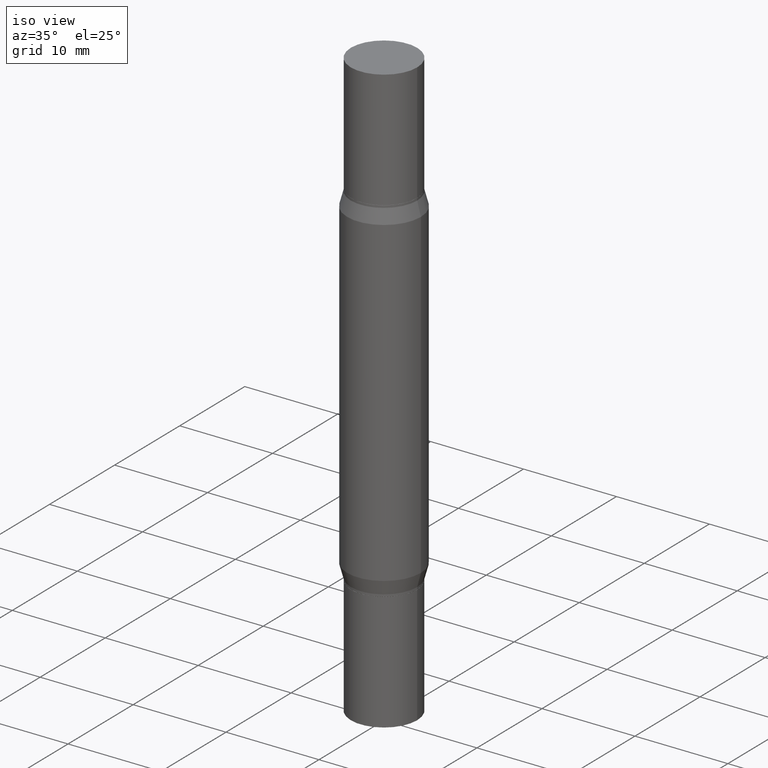
[diagram: clean part render]
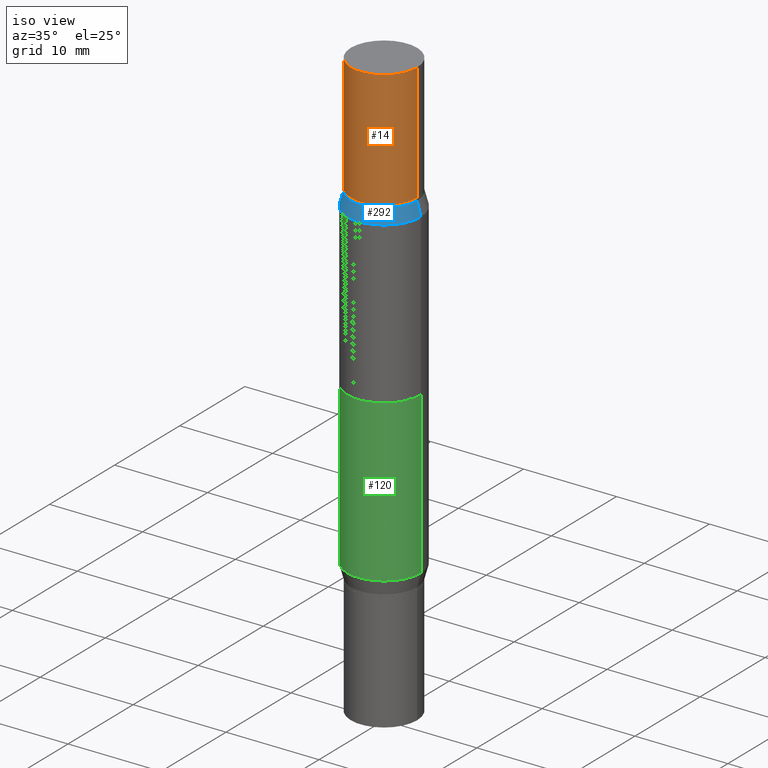
[diagram: same view with three faces highlighted in distinct colors, each labeled with its STEP entity id]
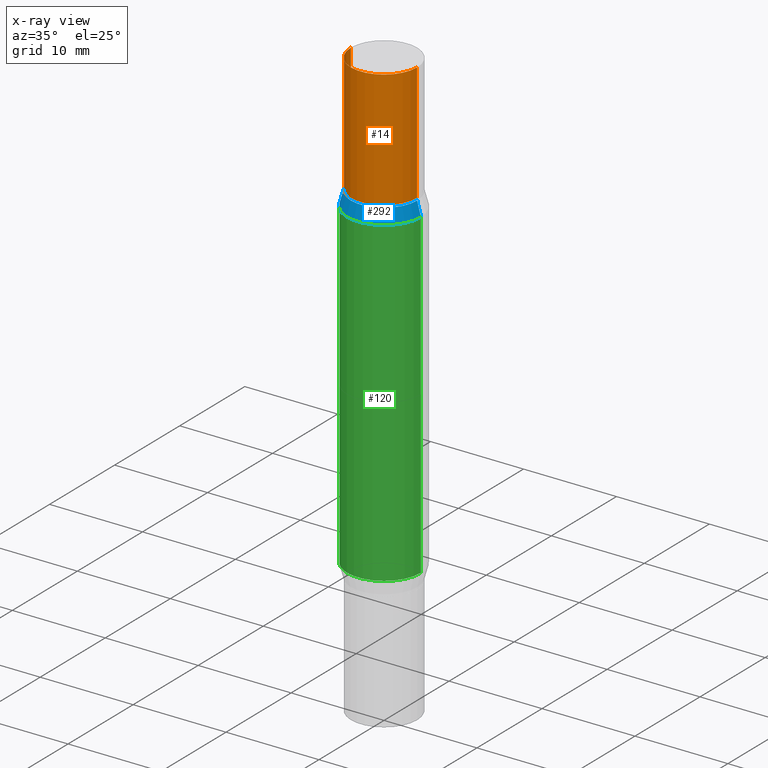
[diagram: x-ray of the same camera — body ghosted, the three highlighted faces saturated]
A machine part, iso view with three faces highlighted in distinct colors.
The next image is the same camera in x-ray (body ghosted, the three faces saturated) — at least one of them is partly hidden behind the body in this view.
Their STEP definitions:

[orange] entity #14 — the highlighted cylindrical surface (partial cylindrical patch) has radius 3.5712 mm, axis along (-0, -0, -1).
#14 = ADVANCED_FACE ( 'NONE', ( #321 ), #200, .T. ) ;
#29 = ORIENTED_EDGE ( 'NONE', *, *, #704, .T. ) ;
#49 = CARTESIAN_POINT ( 'NONE',  ( -0.1406000000000000028, 9.203943989387182081E-17, 5.463695987328557991E-16 ) ) ;
#100 = CARTESIAN_POINT ( 'NONE',  ( 4.890937612370273754E-29, -1.745497852333085568E-15, -0.4999999999999993339 ) ) ;
#115 = CIRCLE ( 'NONE', #154, 0.1406000000000000028 ) ;
#132 = EDGE_CURVE ( 'NONE', #849, #193, #115, .T. ) ;
#154 = AXIS2_PLACEMENT_3D ( 'NONE', #974, #598, #366 ) ;
#184 = CARTESIAN_POINT ( 'NONE',  ( 0.1406000000000000028, -9.710912594738023419E-15, -2.499999999999999556 ) ) ;
#188 = DIRECTION ( 'NONE',  ( 1.000000000000000000, -6.982962677686265133E-15, 0.000000000000000000 ) ) ;
#193 = VERTEX_POINT ( 'NONE', #387 ) ;
#200 = CYLINDRICAL_SURFACE ( 'NONE', #318, 0.1406000000000000028 ) ;
#243 = DIRECTION ( 'NONE',  ( -2.445468806185136597E-29, -3.491805094961124077E-15, -1.000000000000000000 ) ) ;
#265 = EDGE_LOOP ( 'NONE', ( #642, #613, #29, #328 ) ) ;
#287 = CIRCLE ( 'NONE', #544, 0.1406000000000000028 ) ;
#318 = AXIS2_PLACEMENT_3D ( 'NONE', #785, #243, #188 ) ;
#321 = FACE_OUTER_BOUND ( 'NONE', #265, .T. ) ;
#328 = ORIENTED_EDGE ( 'NONE', *, *, #773, .F. ) ;
#335 = DIRECTION ( 'NONE',  ( -2.445468806185136877E-29, -3.491805094961123683E-15, -1.000000000000000000 ) ) ;
#340 = DIRECTION ( 'NONE',  ( 1.000000000000000000, -6.982962677686265133E-15, 0.000000000000000000 ) ) ;
#366 = DIRECTION ( 'NONE',  ( 1.000000000000000000, -6.982962677686266711E-15, 0.000000000000000000 ) ) ;
#387 = CARTESIAN_POINT ( 'NONE',  ( 0.1406000000000000028, -9.813998573352146072E-16, 5.463695987328526437E-16 ) ) ;
#402 = DIRECTION ( 'NONE',  ( -2.445468806185136877E-29, -3.491805094961123683E-15, -1.000000000000000000 ) ) ;
#514 = CARTESIAN_POINT ( 'NONE',  ( 0.1406000000000000028, -2.727302404815774476E-15, -0.4999999999999993339 ) ) ;
#544 = AXIS2_PLACEMENT_3D ( 'NONE', #100, #549, #340 ) ;
#549 = DIRECTION ( 'NONE',  ( 2.445468806185136597E-29, 3.491805094961124077E-15, 1.000000000000000000 ) ) ;
#567 = CARTESIAN_POINT ( 'NONE',  ( -0.1406000000000000028, -7.764522023768658166E-15, -2.499999999999999556 ) ) ;
#589 = CARTESIAN_POINT ( 'NONE',  ( -0.1406000000000000028, 9.203943989387194407E-17, -0.4999999999999993339 ) ) ;
#598 = DIRECTION ( 'NONE',  ( 2.445468806185136597E-29, 3.491805094961124077E-15, 1.000000000000000000 ) ) ;
#613 = ORIENTED_EDGE ( 'NONE', *, *, #802, .T. ) ;
#634 = VECTOR ( 'NONE', #335, 39.37007874015748143 ) ;
#642 = ORIENTED_EDGE ( 'NONE', *, *, #132, .F. ) ;
#704 = EDGE_CURVE ( 'NONE', #940, #842, #287, .T. ) ;
#773 = EDGE_CURVE ( 'NONE', #193, #842, #939, .T. ) ;
#785 = CARTESIAN_POINT ( 'NONE',  ( 0.000000000000000000, -8.729108042255335103E-15, -2.499999999999999556 ) ) ;
#802 = EDGE_CURVE ( 'NONE', #849, #940, #850, .T. ) ;
#810 = VECTOR ( 'NONE', #402, 39.37007874015748143 ) ;
#842 = VERTEX_POINT ( 'NONE', #514 ) ;
#849 = VERTEX_POINT ( 'NONE', #49 ) ;
#850 = LINE ( 'NONE', #567, #810 ) ;
#939 = LINE ( 'NONE', #184, #634 ) ;
#940 = VERTEX_POINT ( 'NONE', #589 ) ;
#974 = CARTESIAN_POINT ( 'NONE',  ( 6.113672015462842613E-29, 4.046951474745467748E-19, 5.463695987328526437E-16 ) ) ;

[blue] entity #292 — the highlighted conical surface has half-angle 15 deg.
#93 = ORIENTED_EDGE ( 'NONE', *, *, #395, .T. ) ;
#94 = CARTESIAN_POINT ( 'NONE',  ( 4.866482924308422209E-29, -1.780415903282698911E-15, -0.5099999999999994538 ) ) ;
#96 = LINE ( 'NONE', #260, #809 ) ;
#167 = CONICAL_SURFACE ( 'NONE', #212, 0.1405999999999998917, 0.2617993877991502960 ) ;
#189 = DIRECTION ( 'NONE',  ( -0.2588190451025215721, -1.597197180879712551E-15, -0.9659258262890679791 ) ) ;
#191 = DIRECTION ( 'NONE',  ( 1.000000000000000000, -6.982962677686265133E-15, 0.000000000000000000 ) ) ;
#196 = CIRCLE ( 'NONE', #453, 0.1562500000000000000 ) ;
#203 = CARTESIAN_POINT ( 'NONE',  ( -0.1405999999999998917, -7.992438105949555922E-16, -0.5099999999999994538 ) ) ;
#212 = AXIS2_PLACEMENT_3D ( 'NONE', #94, #394, #694 ) ;
#258 = CARTESIAN_POINT ( 'NONE',  ( 4.723651417821850369E-29, -1.984360349766479521E-15, -0.5684065951384525972 ) ) ;
#260 = CARTESIAN_POINT ( 'NONE',  ( -0.1405999999999998917, -8.158298847960224676E-16, -0.5099999999999994538 ) ) ;
#263 = VERTEX_POINT ( 'NONE', #478 ) ;
#267 = CARTESIAN_POINT ( 'NONE',  ( 0.1405999999999998917, -2.762220455765387228E-15, -0.5099999999999994538 ) ) ;
#292 = ADVANCED_FACE ( 'NONE', ( #772 ), #167, .T. ) ;
#393 = VERTEX_POINT ( 'NONE', #203 ) ;
#394 = DIRECTION ( 'NONE',  ( -2.445468806185136597E-29, -3.491805094961124077E-15, -1.000000000000000000 ) ) ;
#395 = EDGE_CURVE ( 'NONE', #678, #263, #196, .T. ) ;
#407 = LINE ( 'NONE', #267, #918 ) ;
#416 = AXIS2_PLACEMENT_3D ( 'NONE', #656, #430, #795 ) ;
#430 = DIRECTION ( 'NONE',  ( 2.445468806185136597E-29, 3.491805094961124077E-15, 1.000000000000000000 ) ) ;
#435 = EDGE_CURVE ( 'NONE', #695, #263, #407, .T. ) ;
#453 = AXIS2_PLACEMENT_3D ( 'NONE', #258, #718, #191 ) ;
#468 = ORIENTED_EDGE ( 'NONE', *, *, #435, .F. ) ;
#478 = CARTESIAN_POINT ( 'NONE',  ( 0.1562500000000000000, -3.075448268154960667E-15, -0.5684065951384525972 ) ) ;
#575 = CIRCLE ( 'NONE', #416, 0.1405999999999998917 ) ;
#656 = CARTESIAN_POINT ( 'NONE',  ( 4.866482924308422209E-29, -1.780415903282698911E-15, -0.5099999999999994538 ) ) ;
#678 = VERTEX_POINT ( 'NONE', #865 ) ;
#694 = DIRECTION ( 'NONE',  ( 1.000000000000000000, -6.982962677686266711E-15, 0.000000000000000000 ) ) ;
#695 = VERTEX_POINT ( 'NONE', #709 ) ;
#709 = CARTESIAN_POINT ( 'NONE',  ( 0.1405999999999998917, -2.762220455765387228E-15, -0.5099999999999994538 ) ) ;
#714 = EDGE_CURVE ( 'NONE', #393, #678, #96, .T. ) ;
#718 = DIRECTION ( 'NONE',  ( 2.445468806185136597E-29, 3.491805094961124077E-15, 1.000000000000000000 ) ) ;
#723 = DIRECTION ( 'NONE',  ( 0.2588190451025215721, -5.180148453816008779E-15, -0.9659258262890679791 ) ) ;
#772 = FACE_OUTER_BOUND ( 'NONE', #823, .T. ) ;
#795 = DIRECTION ( 'NONE',  ( 1.000000000000000000, -6.982962677686266711E-15, 0.000000000000000000 ) ) ;
#799 = ORIENTED_EDGE ( 'NONE', *, *, #714, .T. ) ;
#809 = VECTOR ( 'NONE', #189, 39.37007874015748143 ) ;
#823 = EDGE_LOOP ( 'NONE', ( #958, #799, #93, #468 ) ) ;
#848 = EDGE_CURVE ( 'NONE', #393, #695, #575, .T. ) ;
#865 = CARTESIAN_POINT ( 'NONE',  ( -0.1562500000000000000, -9.124075376146796868E-16, -0.5684065951384525972 ) ) ;
#918 = VECTOR ( 'NONE', #723, 39.37007874015748143 ) ;
#958 = ORIENTED_EDGE ( 'NONE', *, *, #848, .F. ) ;

[green] entity #120 — the highlighted cylindrical surface (partial cylindrical patch) has radius 3.9688 mm, axis along (-0, -0, -1).
#39 = CARTESIAN_POINT ( 'NONE',  ( 0.1562500000000000000, -7.835210245695063494E-15, -1.931593404861546848 ) ) ;
#69 = DIRECTION ( 'NONE',  ( -2.445468806185136597E-29, -3.491805094961124077E-15, -1.000000000000000000 ) ) ;
#116 = AXIS2_PLACEMENT_3D ( 'NONE', #354, #213, #207 ) ;
#120 = ADVANCED_FACE ( 'NONE', ( #744 ), #381, .T. ) ;
#133 = AXIS2_PLACEMENT_3D ( 'NONE', #964, #69, #659 ) ;
#166 = CARTESIAN_POINT ( 'NONE',  ( 0.1562500000000000000, -3.075448268154960667E-15, -0.5684065951384525972 ) ) ;
#183 = DIRECTION ( 'NONE',  ( -2.445468806185136877E-29, -3.491805094961123683E-15, -1.000000000000000000 ) ) ;
#207 = DIRECTION ( 'NONE',  ( 1.000000000000000000, -6.982962677686269077E-15, 0.000000000000000000 ) ) ;
#211 = VERTEX_POINT ( 'NONE', #166 ) ;
#213 = DIRECTION ( 'NONE',  ( -2.445468806185136597E-29, 3.491481338843145583E-15, 1.000000000000000000 ) ) ;
#217 = DIRECTION ( 'NONE',  ( 1.000000000000000000, -6.982962677686265133E-15, 0.000000000000000000 ) ) ;
#221 = VERTEX_POINT ( 'NONE', #624 ) ;
#240 = VERTEX_POINT ( 'NONE', #309 ) ;
#272 = CARTESIAN_POINT ( 'NONE',  ( -0.1562500000000000000, -7.657155230103533296E-15, -2.499999999999999556 ) ) ;
#280 = ORIENTED_EDGE ( 'NONE', *, *, #862, .F. ) ;
#309 = CARTESIAN_POINT ( 'NONE',  ( -0.1562500000000000000, -9.124075376146796868E-16, -0.5684065951384525972 ) ) ;
#325 = EDGE_CURVE ( 'NONE', #211, #732, #410, .T. ) ;
#354 = CARTESIAN_POINT ( 'NONE',  ( 4.723651417821850369E-29, -6.744122327306583531E-15, -1.931593404861546848 ) ) ;
#381 = CYLINDRICAL_SURFACE ( 'NONE', #133, 0.1562500000000000000 ) ;
#410 = LINE ( 'NONE', #855, #711 ) ;
#437 = CARTESIAN_POINT ( 'NONE',  ( 4.723651417821850369E-29, -1.984360349766479521E-15, -0.5684065951384525972 ) ) ;
#456 = EDGE_CURVE ( 'NONE', #240, #221, #500, .T. ) ;
#500 = LINE ( 'NONE', #272, #607 ) ;
#569 = EDGE_CURVE ( 'NONE', #221, #732, #856, .T. ) ;
#607 = VECTOR ( 'NONE', #800, 39.37007874015748143 ) ;
#616 = ORIENTED_EDGE ( 'NONE', *, *, #456, .T. ) ;
#624 = CARTESIAN_POINT ( 'NONE',  ( -0.1562500000000000000, -3.292398861402129087E-15, -1.931593404861546848 ) ) ;
#649 = ORIENTED_EDGE ( 'NONE', *, *, #325, .F. ) ;
#659 = DIRECTION ( 'NONE',  ( 1.000000000000000000, -6.982962677686262766E-15, 0.000000000000000000 ) ) ;
#670 = CIRCLE ( 'NONE', #715, 0.1562500000000000000 ) ;
#711 = VECTOR ( 'NONE', #183, 39.37007874015748143 ) ;
#715 = AXIS2_PLACEMENT_3D ( 'NONE', #437, #883, #217 ) ;
#732 = VERTEX_POINT ( 'NONE', #39 ) ;
#744 = FACE_OUTER_BOUND ( 'NONE', #762, .T. ) ;
#762 = EDGE_LOOP ( 'NONE', ( #280, #616, #938, #649 ) ) ;
#800 = DIRECTION ( 'NONE',  ( -2.445468806185136877E-29, -3.491805094961123683E-15, -1.000000000000000000 ) ) ;
#855 = CARTESIAN_POINT ( 'NONE',  ( 0.1562500000000000000, -9.820195960643813487E-15, -2.499999999999999556 ) ) ;
#856 = CIRCLE ( 'NONE', #116, 0.1562500000000000000 ) ;
#862 = EDGE_CURVE ( 'NONE', #240, #211, #670, .T. ) ;
#883 = DIRECTION ( 'NONE',  ( 2.445468806185136597E-29, 3.491805094961124077E-15, 1.000000000000000000 ) ) ;
#938 = ORIENTED_EDGE ( 'NONE', *, *, #569, .T. ) ;
#964 = CARTESIAN_POINT ( 'NONE',  ( 0.000000000000000000, -8.729108042255335103E-15, -2.499999999999999556 ) ) ;